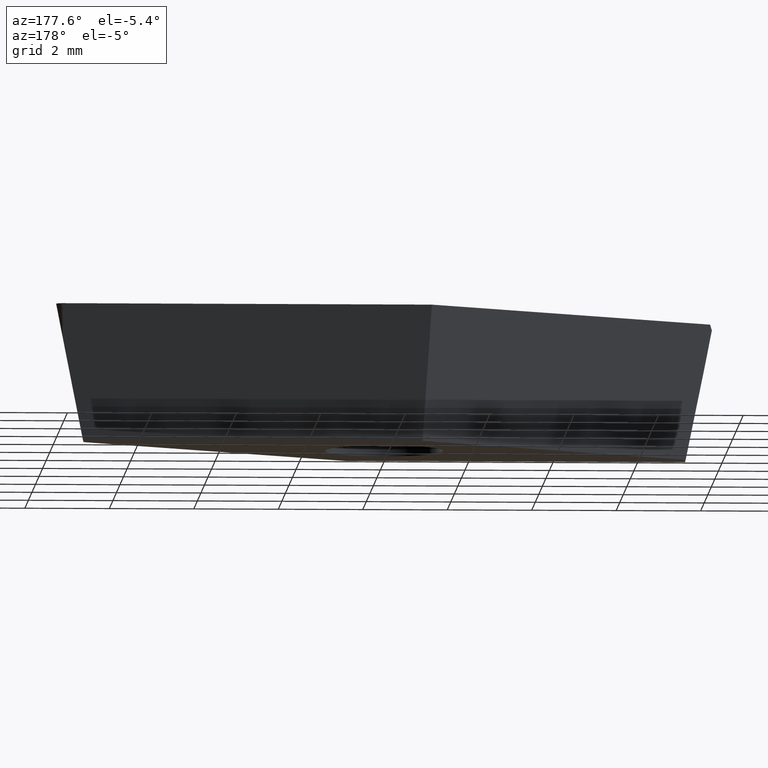
[diagram: clean part render]
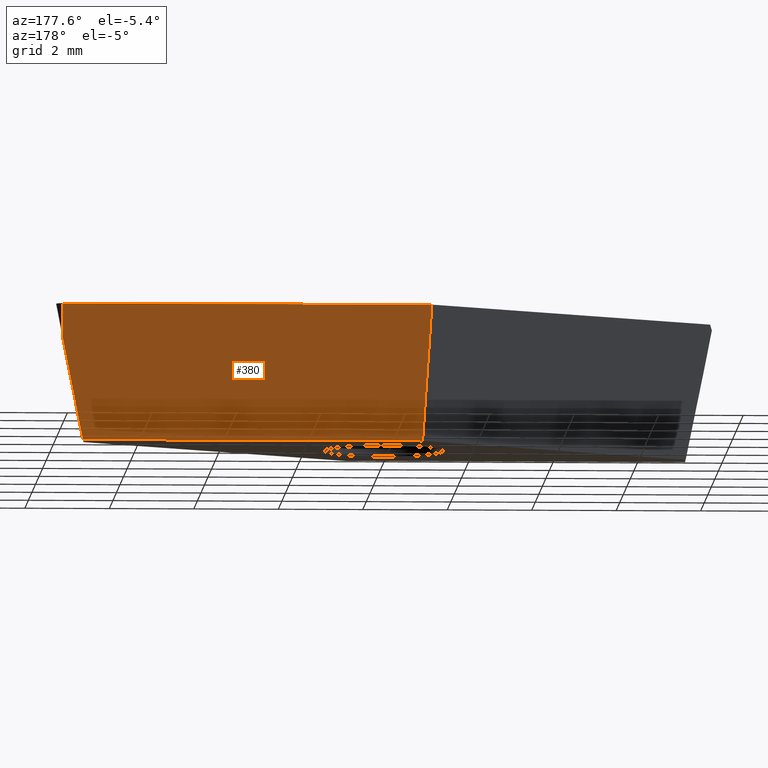
[diagram: same view with one face highlighted and labeled with its STEP entity id]
A machine part, auxiliary view. The second image highlights one B-rep face of the part: STEP entity #380.
In plain terms, the highlighted planar face has unit normal (-0, 0.9816, -0.1908).
Its self-contained STEP definition (entity closure, byte-faithful):
#43 = CARTESIAN_POINT ( 'NONE',  ( -0.8061782088420828000, 2.556870616942053400, -3.180000000000000200 ) ) ;
#50 = LINE ( 'NONE', #376, #51 ) ;
#51 = VECTOR ( 'NONE', #409, 1000.000000000000000 ) ;
#59 = DIRECTION ( 'NONE',  ( -0.06005326349153970700, 0.1904646183547176200, 0.9798555172570124800 ) ) ;
#64 = CARTESIAN_POINT ( 'NONE',  ( 7.237137390861797700, 2.556870616942054300, -3.180000000000000200 ) ) ;
#94 = ORIENTED_EDGE ( 'NONE', *, *, #430, .F. ) ;
#109 = CARTESIAN_POINT ( 'NONE',  ( 7.739144693496297300, 3.025000000000000800, -0.7716831023955452700 ) ) ;
#112 = EDGE_CURVE ( 'NONE', #357, #140, #50, .T. ) ;
#120 = DIRECTION ( 'NONE',  ( 0.0000000000000000000, 0.1908089953765452800, 0.9816271834476639800 ) ) ;
#123 = PLANE ( 'NONE',  #403 ) ;
#127 = DIRECTION ( 'NONE',  ( -1.000000000000000000, -9.744461978823348800E-017, -0.0000000000000000000 ) ) ;
#139 = DIRECTION ( 'NONE',  ( 1.859331000664225100E-017, -0.1908089953765452500, -0.9816271834476638600 ) ) ;
#140 = VERTEX_POINT ( 'NONE', #43 ) ;
#141 = CARTESIAN_POINT ( 'NONE',  ( 7.739144693496298200, 3.175000000000000700, 5.764875297616103600E-018 ) ) ;
#151 = CARTESIAN_POINT ( 'NONE',  ( -1.001073654690764600, 3.174999999999999800, 0.0000000000000000000 ) ) ;
#155 = DIRECTION ( 'NONE',  ( -9.565428766485213700E-017, 0.9816271834476639800, -0.1908089953765452800 ) ) ;
#172 = CARTESIAN_POINT ( 'NONE',  ( -1.001073654690764600, 3.174999999999999800, 0.0000000000000000000 ) ) ;
#193 = DIRECTION ( 'NONE',  ( 0.2004640746510997800, 0.1869357738407769500, 0.9617011860410842300 ) ) ;
#201 = CARTESIAN_POINT ( 'NONE',  ( -1.001073654690764600, 3.174999999999999800, 0.0000000000000000000 ) ) ;
#233 = ORIENTED_EDGE ( 'NONE', *, *, #424, .T. ) ;
#235 = ORIENTED_EDGE ( 'NONE', *, *, #420, .F. ) ;
#237 = ORIENTED_EDGE ( 'NONE', *, *, #112, .T. ) ;
#240 = ORIENTED_EDGE ( 'NONE', *, *, #319, .T. ) ;
#257 = CARTESIAN_POINT ( 'NONE',  ( 7.739144693496298200, 3.175000000000000700, 0.0000000000000000000 ) ) ;
#273 = CARTESIAN_POINT ( 'NONE',  ( 7.900000000000000400, 3.175000000000000700, 0.0000000000000000000 ) ) ;
#280 = VECTOR ( 'NONE', #127, 1000.000000000000000 ) ;
#313 = LINE ( 'NONE', #172, #280 ) ;
#315 = CARTESIAN_POINT ( 'NONE',  ( -1.001073654690764600, 3.174999999999999800, 0.0000000000000000000 ) ) ;
#317 = VERTEX_POINT ( 'NONE', #315 ) ;
#319 = EDGE_CURVE ( 'NONE', #140, #317, #433, .T. ) ;
#321 = EDGE_LOOP ( 'NONE', ( #94, #233, #235, #237, #240 ) ) ;
#324 = LINE ( 'NONE', #141, #345 ) ;
#341 = VECTOR ( 'NONE', #193, 1000.000000000000100 ) ;
#343 = VERTEX_POINT ( 'NONE', #109 ) ;
#345 = VECTOR ( 'NONE', #139, 1000.000000000000100 ) ;
#357 = VERTEX_POINT ( 'NONE', #64 ) ;
#361 = VERTEX_POINT ( 'NONE', #257 ) ;
#376 = CARTESIAN_POINT ( 'NONE',  ( -1.001073654690764600, 2.556870616942053400, -3.180000000000000200 ) ) ;
#380 = ADVANCED_FACE ( 'NONE', ( #432 ), #123, .T. ) ;
#382 = LINE ( 'NONE', #273, #341 ) ;
#396 = VECTOR ( 'NONE', #59, 1000.000000000000100 ) ;
#403 = AXIS2_PLACEMENT_3D ( 'NONE', #201, #155, #120 ) ;
#409 = DIRECTION ( 'NONE',  ( -1.000000000000000000, -9.744461978823350000E-017, 0.0000000000000000000 ) ) ;
#420 = EDGE_CURVE ( 'NONE', #357, #343, #382, .T. ) ;
#424 = EDGE_CURVE ( 'NONE', #361, #343, #324, .T. ) ;
#430 = EDGE_CURVE ( 'NONE', #361, #317, #313, .T. ) ;
#432 = FACE_OUTER_BOUND ( 'NONE', #321, .T. ) ;
#433 = LINE ( 'NONE', #151, #396 ) ;